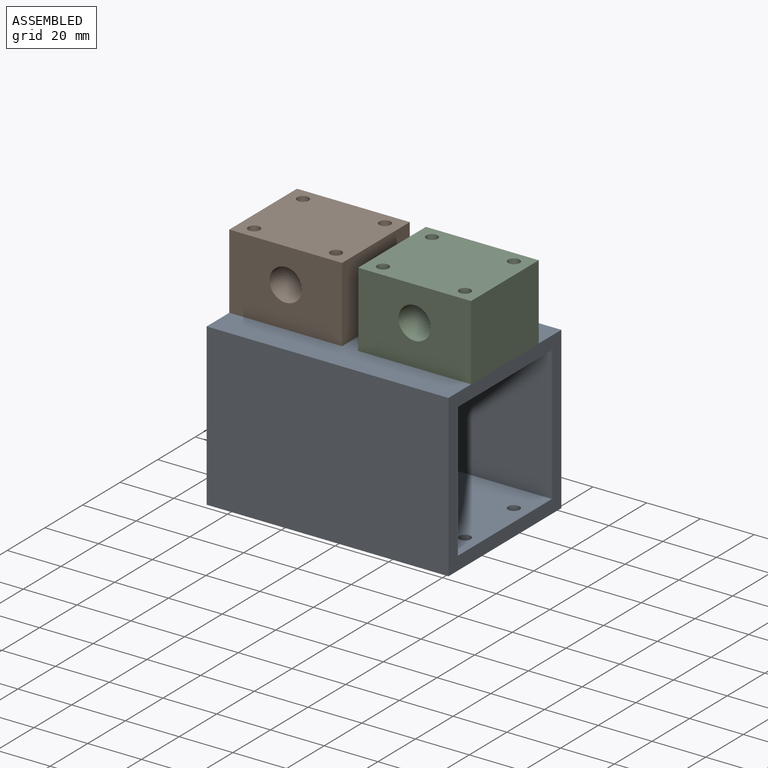
[diagram: assembled view]
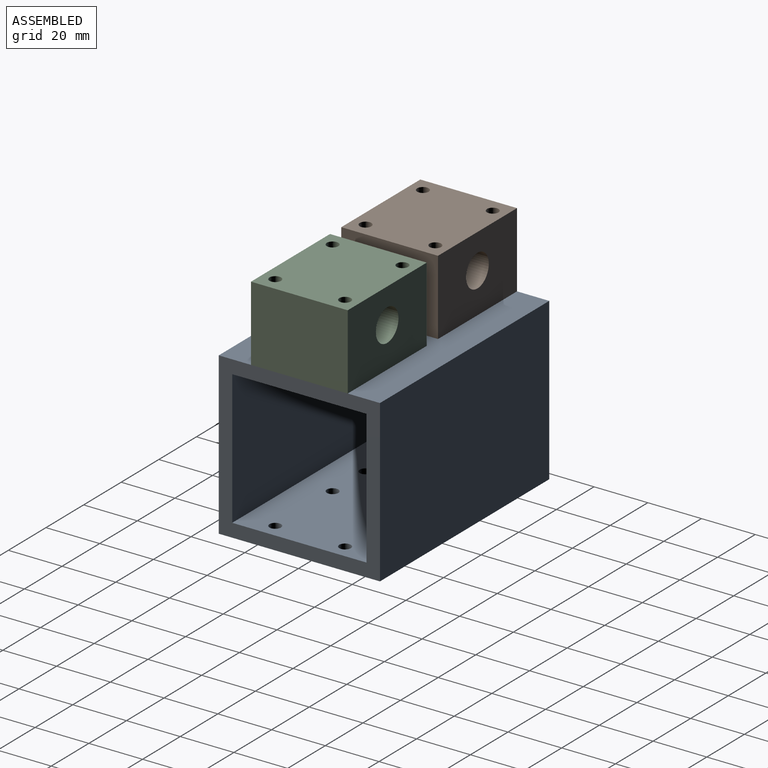
[diagram: assembled view, second angle]
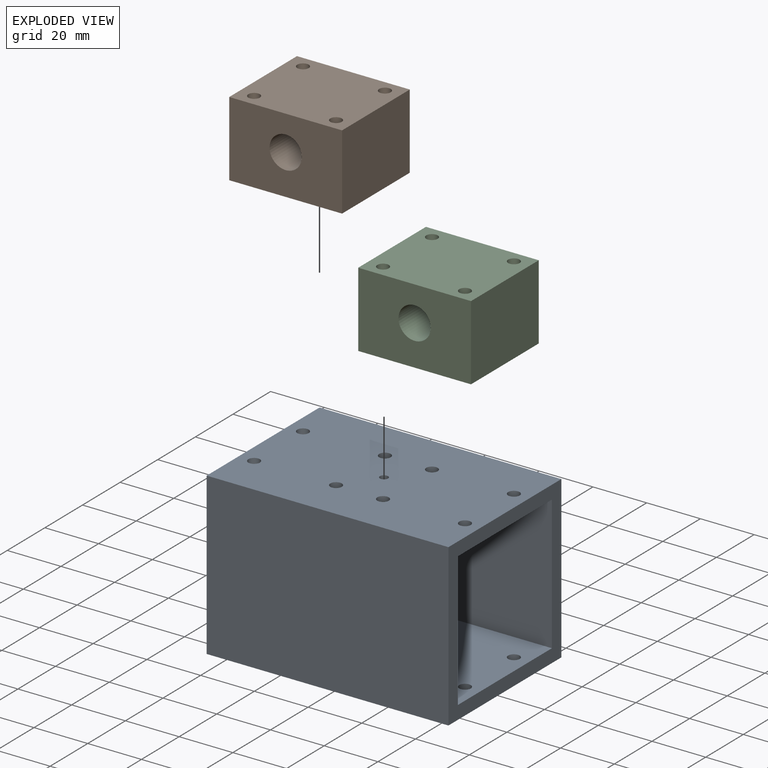
[diagram: exploded view]
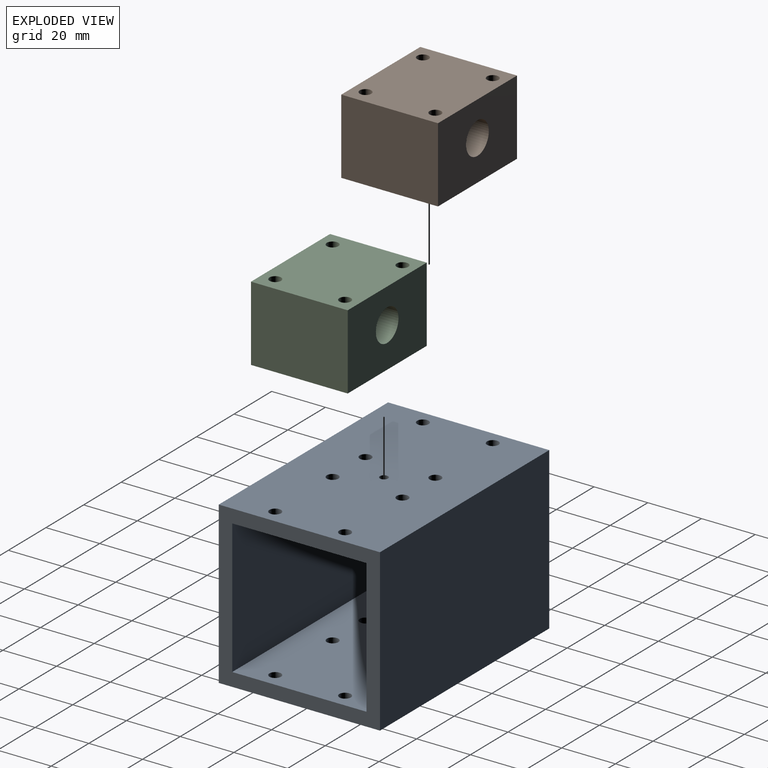
[diagram: exploded view, second angle]
ASSEMBLY  parts=3 mates=2
PART A: 28 faces, bbox 90x60x60 mm
  f0: plane 60x60mm, normal (-1,0,0), area 1100mm2, adj f11,f14,f21,f22,f24,f25,f26,f27
  f1: plane 60x60mm, normal (1,0,0), area 1100mm2, adj f11,f14,f21,f22,f24,f25,f26,f27
  f2: cylinder r=2.15mm len=5mm, axis (0,0,1), area 67.5mm2, adj f22,f24
  f3: cylinder r=2.15mm len=5mm, axis (0,0,1), area 67.5mm2, adj f22,f24
  f4: cylinder r=2.15mm len=5mm, axis (0,0,1), area 67.5mm2, adj f22,f24
  f5: cylinder r=2.15mm len=5mm, axis (0,0,1), area 67.5mm2, adj f22,f24
  f6: cylinder r=2.15mm len=5mm, axis (0,0,1), area 67.5mm2, adj f22,f24
  f7: cylinder r=2.15mm len=5mm, axis (0,0,1), area 67.5mm2, adj f22,f24
  f8: cylinder r=2.15mm len=5mm, axis (0,0,1), area 67.5mm2, adj f22,f24
  f9: cylinder r=2.15mm len=5mm, axis (0,0,1), area 67.5mm2, adj f22,f24
  f10: cylinder r=1.5mm len=5mm, axis (0,0,1), area 47.1mm2, adj f22,f24
  f11: plane 90x60mm, normal (0,-1,0), area 5400mm2, adj f0,f1,f21,f22
  f12: cylinder r=2.15mm len=5mm, axis (0,0,1), area 67.5mm2, adj f21,f25
  f13: cylinder r=2.15mm len=5mm, axis (0,0,1), area 67.5mm2, adj f21,f25
  f14: plane 90x60mm, normal (0,1,0), area 5400mm2, adj f0,f1,f21,f22
  f15: cylinder r=2.15mm len=5mm, axis (0,0,1), area 67.5mm2, adj f21,f25
  f16: cylinder r=2.15mm len=5mm, axis (0,0,1), area 67.5mm2, adj f21,f25
  f17: cylinder r=2.15mm len=5mm, axis (0,0,1), area 67.5mm2, adj f21,f25
  f18: cylinder r=2.15mm len=5mm, axis (0,0,1), area 67.5mm2, adj f21,f25
  f19: cylinder r=2.15mm len=5mm, axis (0,0,1), area 67.5mm2, adj f21,f25
  f20: cylinder r=2.15mm len=5mm, axis (0,0,1), area 67.5mm2, adj f21,f25
  f21: plane 90x60mm, normal (0,0,-1), area 5276.8mm2, adj f0,f1,f11,f12,f13,f14,f15,f16
  f22: plane 90x60mm, normal (0,0,1), area 5276.8mm2, adj f0,f1,f2,f3,f4,f5,f6,f7
  f23: cylinder r=1.5mm len=5mm, axis (0,0,1), area 47.1mm2, adj f21,f25
  f24: plane 90x50mm, normal (0,0,-1), area 4376.8mm2, adj f0,f1,f2,f3,f4,f5,f6,f7
  f25: plane 90x50mm, normal (0,0,1), area 4376.8mm2, adj f0,f1,f12,f13,f15,f16,f17,f18
  f26: plane 90x50mm, normal (0,-1,0), area 4500mm2, adj f0,f1,f24,f25
  f27: plane 90x50mm, normal (0,1,0), area 4500mm2, adj f0,f1,f24,f25
PART B: 13 faces, bbox 42x36x28 mm
  f0: plane 36x28mm, normal (-1,0,0), area 1008mm2, adj f1,f3,f8,f9
  f1: plane 42x28mm, normal (0,-1,0), area 1062.9mm2, adj f0,f2,f8,f9,f10
  f2: plane 36x28mm, normal (1,0,0), area 1008mm2, adj f1,f3,f8,f9
  f3: plane 42x28mm, normal (0,1,0), area 1062.9mm2, adj f0,f2,f8,f9,f10
  f4: cylinder r=2.15mm len=28mm, axis (0,0,1), area 378.2mm2, adj f8,f9
  f5: cylinder r=2.15mm len=28mm, axis (0,0,1), area 378.2mm2, adj f8,f9
  f6: cylinder r=2.15mm len=28mm, axis (0,0,1), area 378.2mm2, adj f8,f9
  f7: cylinder r=2.15mm len=28mm, axis (0,0,1), area 378.2mm2, adj f8,f9
  f8: plane 42x36mm, normal (0,0,-1), area 1453.9mm2, adj f0,f1,f2,f3,f4,f5,f6,f7
  f9: plane 42x36mm, normal (0,0,1), area 1446.8mm2, adj f0,f1,f2,f3,f4,f5,f6,f7
  f10: cylinder r=6mm len=36mm, axis (0,-1,0), area 1357.2mm2, adj f1,f3
  f11: cylinder r=1.5mm len=5mm, axis (0,0,1), area 47.1mm2, adj f9,f12
  f12: plane 3x3mm, normal (0,0,1), area 7.1mm2, adj f11
PART C: same geometry as B
PLACE A t=(0.24,0.03,2.34)mm
PLACE B rot(axis=(0,1,0),180deg) t=(-23.76,0.03,2.34)mm
PLACE C rot(axis=(0,1,0),180deg) t=(24.24,0.03,2.34)mm
MATE fastened C.f6 <-> A.f9  axis (0,0,-1) through (8.99,-12.97,2.34)mm
MATE fastened B.f6 <-> A.f3  axis (0,0,-1) through (-39.01,-12.97,2.34)mm
